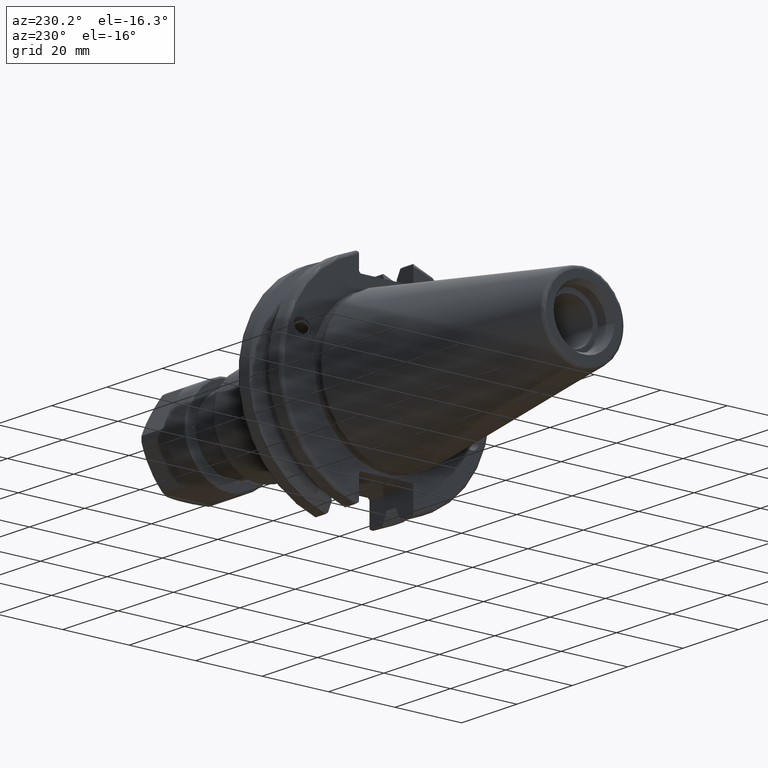
[diagram: clean part render]
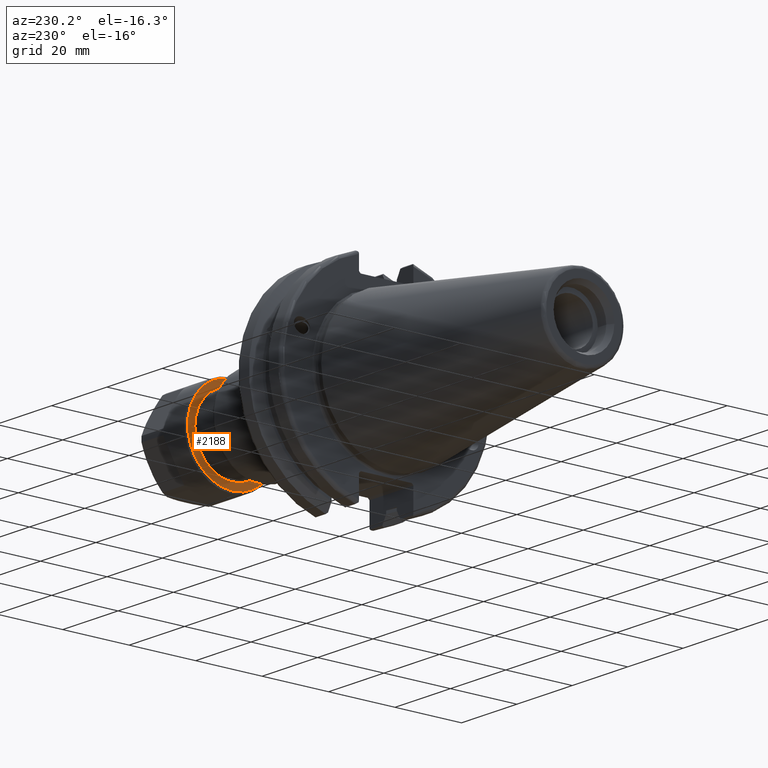
[diagram: same view with one face highlighted and labeled with its STEP entity id]
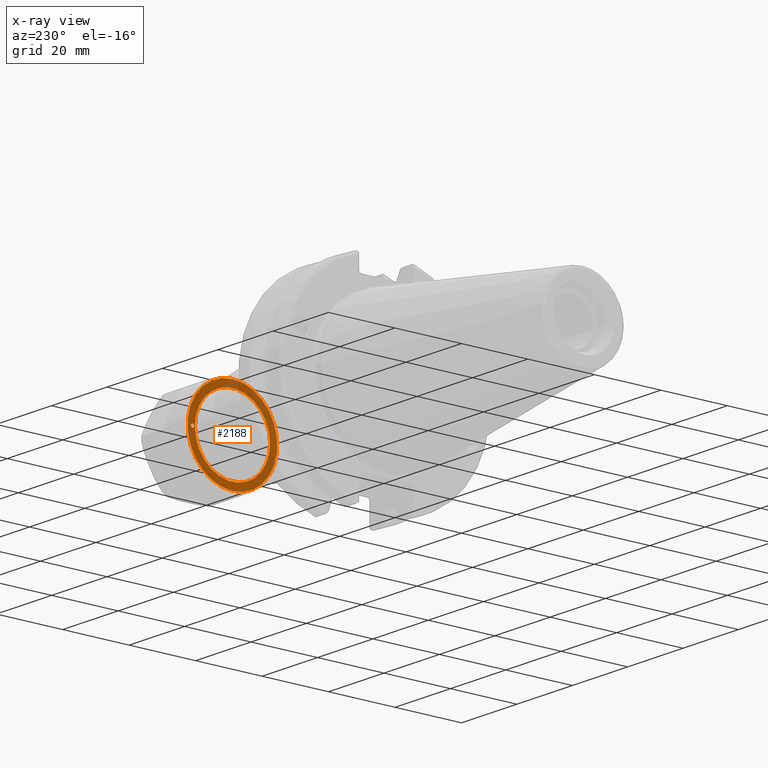
[diagram: x-ray of the same camera — body ghosted, the highlighted face saturated]
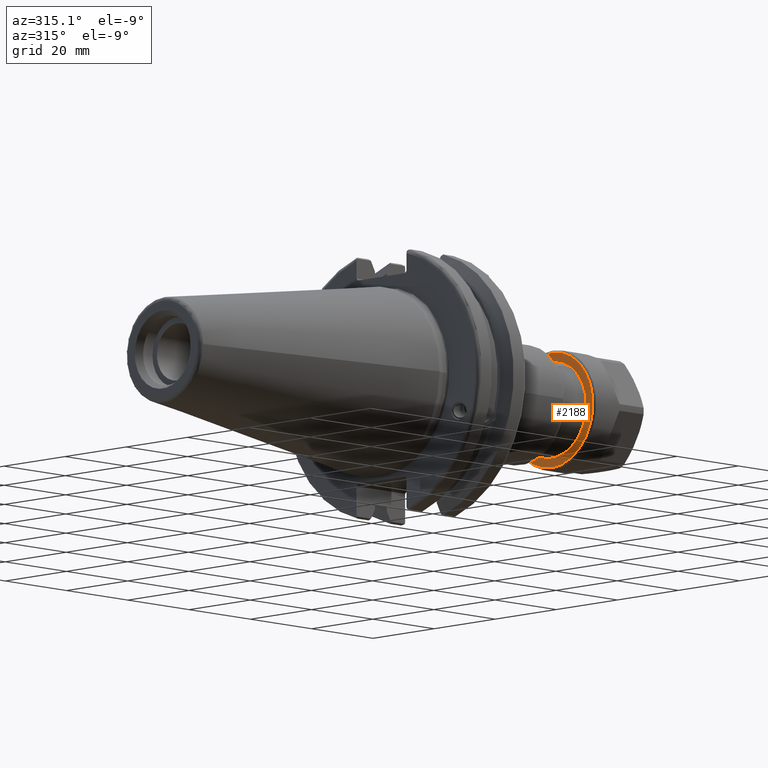
[diagram: same view with one face highlighted and labeled with its STEP entity id]
A machine part, auxiliary view. The second image highlights one B-rep face of the part: STEP entity #2188.
The next image is the same camera in x-ray: the body ghosted, the highlighted face saturated — about 41% of this face is hidden behind the body in this view.
A second angle (auxiliary view) of the same face is appended — the face is thin or edge-on in the first view.
In plain terms, the highlighted planar face has unit normal (1, 0, 0).
Its self-contained STEP definition (entity closure, byte-faithful):
#170=FACE_BOUND('',#498,.T.);
#171=FACE_BOUND('',#499,.T.);
#213=PLANE('',#2485);
#358=FACE_OUTER_BOUND('',#497,.T.);
#497=EDGE_LOOP('',(#1918));
#498=EDGE_LOOP('',(#1919));
#499=EDGE_LOOP('',(#1920));
#881=CIRCLE('',#2486,13.5);
#882=CIRCLE('',#2487,11.3);
#883=CIRCLE('',#2488,0.5);
#1068=VERTEX_POINT('',#4008);
#1069=VERTEX_POINT('',#4010);
#1070=VERTEX_POINT('',#4012);
#1360=EDGE_CURVE('',#1068,#1068,#881,.T.);
#1361=EDGE_CURVE('',#1069,#1069,#882,.T.);
#1362=EDGE_CURVE('',#1070,#1070,#883,.T.);
#1918=ORIENTED_EDGE('',*,*,#1360,.T.);
#1919=ORIENTED_EDGE('',*,*,#1361,.T.);
#1920=ORIENTED_EDGE('',*,*,#1362,.F.);
#2188=ADVANCED_FACE('',(#358,#170,#171),#213,.F.);
#2485=AXIS2_PLACEMENT_3D('',#4007,#3032,#3033);
#2486=AXIS2_PLACEMENT_3D('',#4009,#3034,#3035);
#2487=AXIS2_PLACEMENT_3D('',#4011,#3036,#3037);
#2488=AXIS2_PLACEMENT_3D('',#4013,#3038,#3039);
#3032=DIRECTION('center_axis',(1.,0.,0.));
#3033=DIRECTION('ref_axis',(0.,0.,-1.));
#3034=DIRECTION('center_axis',(-1.,0.,0.));
#3035=DIRECTION('ref_axis',(0.,0.,-1.));
#3036=DIRECTION('center_axis',(1.,0.,0.));
#3037=DIRECTION('ref_axis',(0.,1.,0.));
#3038=DIRECTION('center_axis',(-1.,0.,0.));
#3039=DIRECTION('ref_axis',(0.,1.,0.));
#4007=CARTESIAN_POINT('Origin',(-8.75,0.,0.));
#4008=CARTESIAN_POINT('',(-8.75000000000002,-1.65327317884892E-15,13.5));
#4009=CARTESIAN_POINT('Origin',(-8.75,4.367849422928E-14,0.));
#4010=CARTESIAN_POINT('',(-8.75,-11.2997450594325,0.0759051502308437));
#4011=CARTESIAN_POINT('Origin',(-8.75,0.,0.));
#4012=CARTESIAN_POINT('',(-8.75,11.5,6.12323399573677E-17));
#4013=CARTESIAN_POINT('Origin',(-8.75,12.,0.));